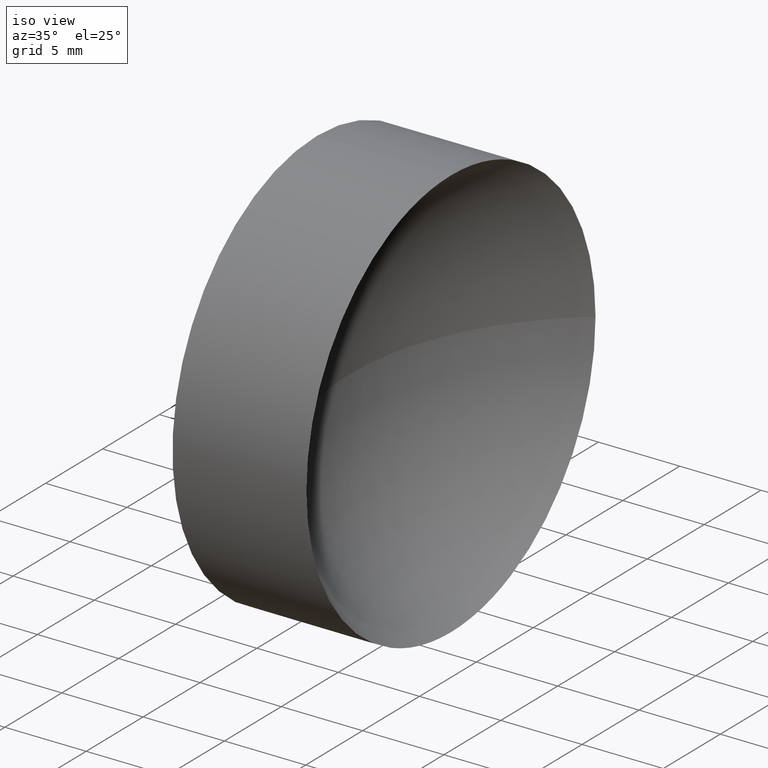
[diagram: clean part render]
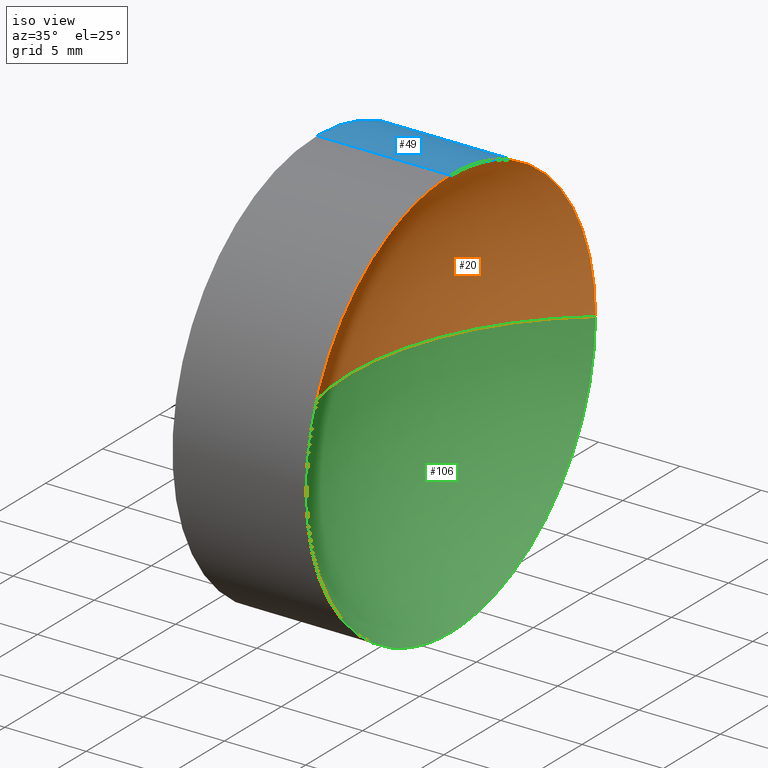
[diagram: same view with three faces highlighted in distinct colors, each labeled with its STEP entity id]
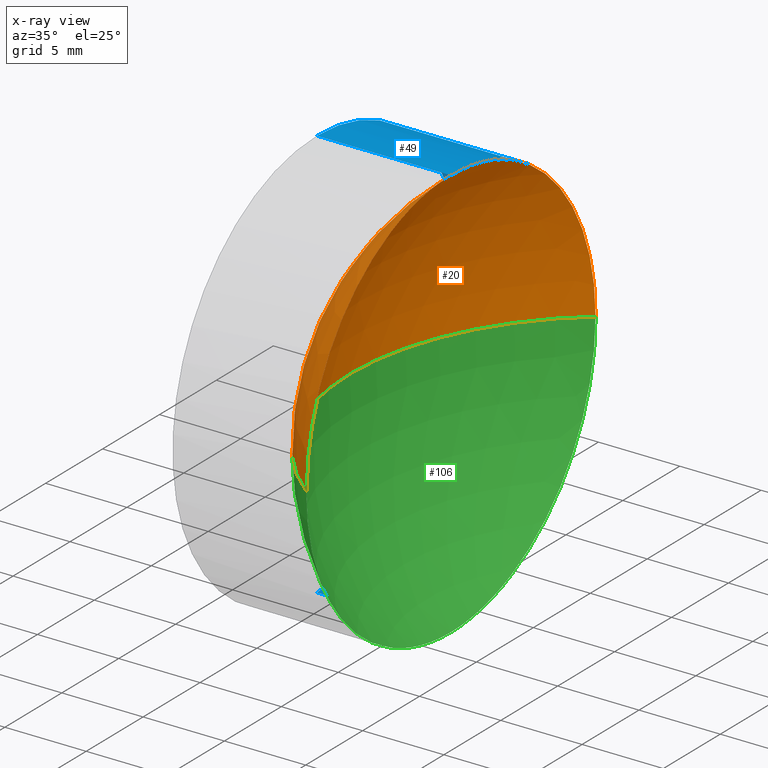
[diagram: x-ray of the same camera — body ghosted, the three highlighted faces saturated]
A machine part, iso view with three faces highlighted in distinct colors.
The next image is the same camera in x-ray (body ghosted, the three faces saturated) — at least one of them is partly hidden behind the body in this view.
Their STEP definitions:

[orange] entity #20 — the highlighted spherical surface has radius 16.05 mm.
#12 = DIRECTION ( 'NONE',  ( 0.0000000000000000000, -1.000000000000000000, 0.0000000000000000000 ) ) ;
#17 = AXIS2_PLACEMENT_3D ( 'NONE', #138, #186, #19 ) ;
#19 = DIRECTION ( 'NONE',  ( 0.0000000000000000000, -1.000000000000000000, -1.224646799147353000E-016 ) ) ;
#20 = ADVANCED_FACE ( 'NONE', ( #41 ), #145, .F. ) ;
#21 = CIRCLE ( 'NONE', #63, 16.05000000000000800 ) ;
#27 = CARTESIAN_POINT ( 'NONE',  ( 127.5990375788394700, 71.19398908659370300, 12.70000000000001500 ) ) ;
#30 = AXIS2_PLACEMENT_3D ( 'NONE', #135, #94, #12 ) ;
#34 = EDGE_LOOP ( 'NONE', ( #156, #171, #175, #64 ) ) ;
#36 = CARTESIAN_POINT ( 'NONE',  ( 121.3629307920347200, 71.19398908659371700, 0.0000000000000000000 ) ) ;
#41 = FACE_OUTER_BOUND ( 'NONE', #34, .T. ) ;
#51 = CARTESIAN_POINT ( 'NONE',  ( 127.5990375788394700, 83.89398908659373400, 1.555301434917139200E-015 ) ) ;
#54 = DIRECTION ( 'NONE',  ( 0.0000000000000000000, 0.0000000000000000000, -1.000000000000000000 ) ) ;
#55 = CARTESIAN_POINT ( 'NONE',  ( 127.5990375788394700, 71.19398908659370300, 0.0000000000000000000 ) ) ;
#63 = AXIS2_PLACEMENT_3D ( 'NONE', #107, #54, #68 ) ;
#64 = ORIENTED_EDGE ( 'NONE', *, *, #182, .T. ) ;
#68 = DIRECTION ( 'NONE',  ( -1.000000000000000000, 0.0000000000000000000, 0.0000000000000000000 ) ) ;
#69 = DIRECTION ( 'NONE',  ( 0.0000000000000000000, 0.0000000000000000000, 1.000000000000000000 ) ) ;
#78 = VERTEX_POINT ( 'NONE', #51 ) ;
#82 = DIRECTION ( 'NONE',  ( -1.000000000000000000, -0.0000000000000000000, -0.0000000000000000000 ) ) ;
#88 = CIRCLE ( 'NONE', #169, 12.70000000000001700 ) ;
#89 = VERTEX_POINT ( 'NONE', #92 ) ;
#92 = CARTESIAN_POINT ( 'NONE',  ( 127.5990375788394700, 58.49398908659370000, 0.0000000000000000000 ) ) ;
#94 = DIRECTION ( 'NONE',  ( 0.0000000000000000000, 0.0000000000000000000, 1.000000000000000000 ) ) ;
#107 = CARTESIAN_POINT ( 'NONE',  ( 137.4129307920347300, 71.19398908659371700, 0.0000000000000000000 ) ) ;
#111 = CARTESIAN_POINT ( 'NONE',  ( 127.5990375788394700, 71.19398908659370300, 0.0000000000000000000 ) ) ;
#120 = EDGE_CURVE ( 'NONE', #142, #78, #131, .T. ) ;
#123 = DIRECTION ( 'NONE',  ( -1.000000000000000000, -0.0000000000000000000, -0.0000000000000000000 ) ) ;
#126 = EDGE_CURVE ( 'NONE', #89, #142, #88, .T. ) ;
#127 = VERTEX_POINT ( 'NONE', #36 ) ;
#131 = CIRCLE ( 'NONE', #155, 12.70000000000001700 ) ;
#135 = CARTESIAN_POINT ( 'NONE',  ( 137.4129307920347300, 71.19398908659371700, 0.0000000000000000000 ) ) ;
#138 = CARTESIAN_POINT ( 'NONE',  ( 137.4129307920347300, 71.19398908659371700, 0.0000000000000000000 ) ) ;
#142 = VERTEX_POINT ( 'NONE', #27 ) ;
#145 = SPHERICAL_SURFACE ( 'NONE', #30, 16.05000000000000400 ) ;
#155 = AXIS2_PLACEMENT_3D ( 'NONE', #55, #82, #165 ) ;
#156 = ORIENTED_EDGE ( 'NONE', *, *, #159, .F. ) ;
#159 = EDGE_CURVE ( 'NONE', #78, #127, #180, .T. ) ;
#165 = DIRECTION ( 'NONE',  ( 0.0000000000000000000, 0.0000000000000000000, 1.000000000000000000 ) ) ;
#169 = AXIS2_PLACEMENT_3D ( 'NONE', #111, #123, #69 ) ;
#171 = ORIENTED_EDGE ( 'NONE', *, *, #120, .F. ) ;
#175 = ORIENTED_EDGE ( 'NONE', *, *, #126, .F. ) ;
#180 = CIRCLE ( 'NONE', #17, 16.05000000000000800 ) ;
#182 = EDGE_CURVE ( 'NONE', #89, #127, #21, .T. ) ;
#186 = DIRECTION ( 'NONE',  ( 0.0000000000000000000, -1.224646799147353200E-016, 1.000000000000000000 ) ) ;

[blue] entity #49 — the highlighted cylindrical surface (partial cylindrical patch) has radius 12.7 mm, axis along (-1, -0, -0).
#7 = AXIS2_PLACEMENT_3D ( 'NONE', #28, #147, #122 ) ;
#8 = ORIENTED_EDGE ( 'NONE', *, *, #120, .T. ) ;
#9 = CARTESIAN_POINT ( 'NONE',  ( 127.5990375788394700, 71.19398908659370300, -12.70000000000001500 ) ) ;
#10 = AXIS2_PLACEMENT_3D ( 'NONE', #97, #11, #109 ) ;
#11 = DIRECTION ( 'NONE',  ( -1.000000000000000000, -0.0000000000000000000, -0.0000000000000000000 ) ) ;
#15 = ORIENTED_EDGE ( 'NONE', *, *, #133, .F. ) ;
#25 = CARTESIAN_POINT ( 'NONE',  ( 111.9552297575605700, 71.19398908659370300, 12.70000000000001000 ) ) ;
#27 = CARTESIAN_POINT ( 'NONE',  ( 127.5990375788394700, 71.19398908659370300, 12.70000000000001500 ) ) ;
#28 = CARTESIAN_POINT ( 'NONE',  ( 119.3629307920347200, 71.19398908659370300, 0.0000000000000000000 ) ) ;
#35 = VERTEX_POINT ( 'NONE', #40 ) ;
#40 = CARTESIAN_POINT ( 'NONE',  ( 119.3629307920347200, 71.19398908659370300, -12.70000000000000300 ) ) ;
#49 = ADVANCED_FACE ( 'NONE', ( #76 ), #110, .T. ) ;
#50 = EDGE_CURVE ( 'NONE', #142, #144, #143, .T. ) ;
#51 = CARTESIAN_POINT ( 'NONE',  ( 127.5990375788394700, 83.89398908659373400, 1.555301434917139200E-015 ) ) ;
#55 = CARTESIAN_POINT ( 'NONE',  ( 127.5990375788394700, 71.19398908659370300, 0.0000000000000000000 ) ) ;
#58 = CIRCLE ( 'NONE', #10, 12.70000000000001700 ) ;
#61 = ORIENTED_EDGE ( 'NONE', *, *, #148, .T. ) ;
#65 = DIRECTION ( 'NONE',  ( -1.000000000000000000, -0.0000000000000000000, -0.0000000000000000000 ) ) ;
#76 = FACE_OUTER_BOUND ( 'NONE', #121, .T. ) ;
#78 = VERTEX_POINT ( 'NONE', #51 ) ;
#82 = DIRECTION ( 'NONE',  ( -1.000000000000000000, -0.0000000000000000000, -0.0000000000000000000 ) ) ;
#83 = VECTOR ( 'NONE', #84, 1000.000000000000000 ) ;
#84 = DIRECTION ( 'NONE',  ( -1.000000000000000000, -0.0000000000000000000, -0.0000000000000000000 ) ) ;
#87 = CIRCLE ( 'NONE', #7, 12.70000000000000300 ) ;
#95 = CARTESIAN_POINT ( 'NONE',  ( 119.3629307920347200, 71.19398908659370300, 12.70000000000000300 ) ) ;
#97 = CARTESIAN_POINT ( 'NONE',  ( 127.5990375788394700, 71.19398908659370300, 0.0000000000000000000 ) ) ;
#100 = VERTEX_POINT ( 'NONE', #9 ) ;
#108 = LINE ( 'NONE', #146, #83 ) ;
#109 = DIRECTION ( 'NONE',  ( 0.0000000000000000000, 0.0000000000000000000, 1.000000000000000000 ) ) ;
#110 = CYLINDRICAL_SURFACE ( 'NONE', #174, 12.70000000000001000 ) ;
#113 = ORIENTED_EDGE ( 'NONE', *, *, #124, .T. ) ;
#115 = VECTOR ( 'NONE', #65, 1000.000000000000000 ) ;
#120 = EDGE_CURVE ( 'NONE', #142, #78, #131, .T. ) ;
#121 = EDGE_LOOP ( 'NONE', ( #113, #61, #15, #162, #8 ) ) ;
#122 = DIRECTION ( 'NONE',  ( 0.0000000000000000000, 0.0000000000000000000, 1.000000000000000000 ) ) ;
#124 = EDGE_CURVE ( 'NONE', #78, #100, #58, .T. ) ;
#131 = CIRCLE ( 'NONE', #155, 12.70000000000001700 ) ;
#133 = EDGE_CURVE ( 'NONE', #144, #35, #87, .T. ) ;
#139 = CARTESIAN_POINT ( 'NONE',  ( 111.9552297575605700, 71.19398908659370300, 0.0000000000000000000 ) ) ;
#142 = VERTEX_POINT ( 'NONE', #27 ) ;
#143 = LINE ( 'NONE', #25, #115 ) ;
#144 = VERTEX_POINT ( 'NONE', #95 ) ;
#146 = CARTESIAN_POINT ( 'NONE',  ( 111.9552297575605700, 71.19398908659370300, -12.70000000000001000 ) ) ;
#147 = DIRECTION ( 'NONE',  ( -1.000000000000000000, -0.0000000000000000000, -0.0000000000000000000 ) ) ;
#148 = EDGE_CURVE ( 'NONE', #100, #35, #108, .T. ) ;
#151 = DIRECTION ( 'NONE',  ( 0.0000000000000000000, 0.0000000000000000000, 1.000000000000000000 ) ) ;
#155 = AXIS2_PLACEMENT_3D ( 'NONE', #55, #82, #165 ) ;
#162 = ORIENTED_EDGE ( 'NONE', *, *, #50, .F. ) ;
#163 = DIRECTION ( 'NONE',  ( -1.000000000000000000, -0.0000000000000000000, -0.0000000000000000000 ) ) ;
#165 = DIRECTION ( 'NONE',  ( 0.0000000000000000000, 0.0000000000000000000, 1.000000000000000000 ) ) ;
#174 = AXIS2_PLACEMENT_3D ( 'NONE', #139, #163, #151 ) ;

[green] entity #106 — the highlighted spherical surface has radius 16.05 mm.
#3 = EDGE_CURVE ( 'NONE', #100, #89, #6, .T. ) ;
#4 = EDGE_LOOP ( 'NONE', ( #185, #23, #33, #153 ) ) ;
#6 = CIRCLE ( 'NONE', #164, 12.70000000000001700 ) ;
#9 = CARTESIAN_POINT ( 'NONE',  ( 127.5990375788394700, 71.19398908659370300, -12.70000000000001500 ) ) ;
#10 = AXIS2_PLACEMENT_3D ( 'NONE', #97, #11, #109 ) ;
#11 = DIRECTION ( 'NONE',  ( -1.000000000000000000, -0.0000000000000000000, -0.0000000000000000000 ) ) ;
#16 = CARTESIAN_POINT ( 'NONE',  ( 127.5990375788394700, 71.19398908659370300, 0.0000000000000000000 ) ) ;
#17 = AXIS2_PLACEMENT_3D ( 'NONE', #138, #186, #19 ) ;
#19 = DIRECTION ( 'NONE',  ( 0.0000000000000000000, -1.000000000000000000, -1.224646799147353000E-016 ) ) ;
#21 = CIRCLE ( 'NONE', #63, 16.05000000000000800 ) ;
#23 = ORIENTED_EDGE ( 'NONE', *, *, #159, .T. ) ;
#24 = DIRECTION ( 'NONE',  ( -1.000000000000000000, -0.0000000000000000000, -0.0000000000000000000 ) ) ;
#33 = ORIENTED_EDGE ( 'NONE', *, *, #182, .F. ) ;
#36 = CARTESIAN_POINT ( 'NONE',  ( 121.3629307920347200, 71.19398908659371700, 0.0000000000000000000 ) ) ;
#51 = CARTESIAN_POINT ( 'NONE',  ( 127.5990375788394700, 83.89398908659373400, 1.555301434917139200E-015 ) ) ;
#54 = DIRECTION ( 'NONE',  ( 0.0000000000000000000, 0.0000000000000000000, -1.000000000000000000 ) ) ;
#58 = CIRCLE ( 'NONE', #10, 12.70000000000001700 ) ;
#63 = AXIS2_PLACEMENT_3D ( 'NONE', #107, #54, #68 ) ;
#67 = AXIS2_PLACEMENT_3D ( 'NONE', #134, #183, #71 ) ;
#68 = DIRECTION ( 'NONE',  ( -1.000000000000000000, 0.0000000000000000000, 0.0000000000000000000 ) ) ;
#71 = DIRECTION ( 'NONE',  ( 0.0000000000000000000, -1.000000000000000000, 0.0000000000000000000 ) ) ;
#78 = VERTEX_POINT ( 'NONE', #51 ) ;
#89 = VERTEX_POINT ( 'NONE', #92 ) ;
#92 = CARTESIAN_POINT ( 'NONE',  ( 127.5990375788394700, 58.49398908659370000, 0.0000000000000000000 ) ) ;
#97 = CARTESIAN_POINT ( 'NONE',  ( 127.5990375788394700, 71.19398908659370300, 0.0000000000000000000 ) ) ;
#100 = VERTEX_POINT ( 'NONE', #9 ) ;
#103 = FACE_OUTER_BOUND ( 'NONE', #4, .T. ) ;
#106 = ADVANCED_FACE ( 'NONE', ( #103 ), #181, .F. ) ;
#107 = CARTESIAN_POINT ( 'NONE',  ( 137.4129307920347300, 71.19398908659371700, 0.0000000000000000000 ) ) ;
#109 = DIRECTION ( 'NONE',  ( 0.0000000000000000000, 0.0000000000000000000, 1.000000000000000000 ) ) ;
#124 = EDGE_CURVE ( 'NONE', #78, #100, #58, .T. ) ;
#127 = VERTEX_POINT ( 'NONE', #36 ) ;
#134 = CARTESIAN_POINT ( 'NONE',  ( 137.4129307920347300, 71.19398908659371700, 0.0000000000000000000 ) ) ;
#138 = CARTESIAN_POINT ( 'NONE',  ( 137.4129307920347300, 71.19398908659371700, 0.0000000000000000000 ) ) ;
#153 = ORIENTED_EDGE ( 'NONE', *, *, #3, .F. ) ;
#159 = EDGE_CURVE ( 'NONE', #78, #127, #180, .T. ) ;
#161 = DIRECTION ( 'NONE',  ( 0.0000000000000000000, 0.0000000000000000000, 1.000000000000000000 ) ) ;
#164 = AXIS2_PLACEMENT_3D ( 'NONE', #16, #24, #161 ) ;
#180 = CIRCLE ( 'NONE', #17, 16.05000000000000800 ) ;
#181 = SPHERICAL_SURFACE ( 'NONE', #67, 16.05000000000000400 ) ;
#182 = EDGE_CURVE ( 'NONE', #89, #127, #21, .T. ) ;
#183 = DIRECTION ( 'NONE',  ( 0.0000000000000000000, 0.0000000000000000000, 1.000000000000000000 ) ) ;
#185 = ORIENTED_EDGE ( 'NONE', *, *, #124, .F. ) ;
#186 = DIRECTION ( 'NONE',  ( 0.0000000000000000000, -1.224646799147353200E-016, 1.000000000000000000 ) ) ;